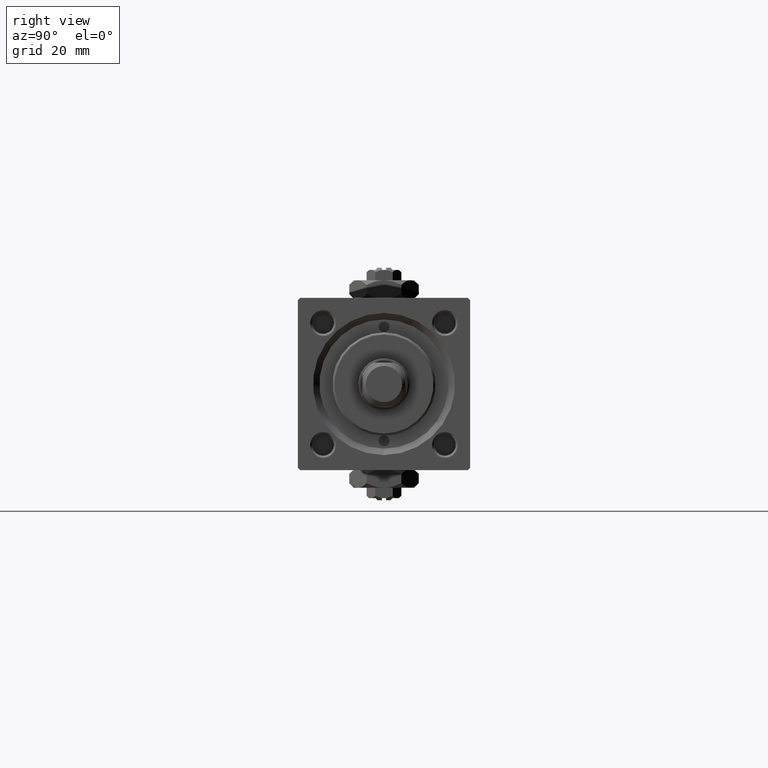
[diagram: clean part render]
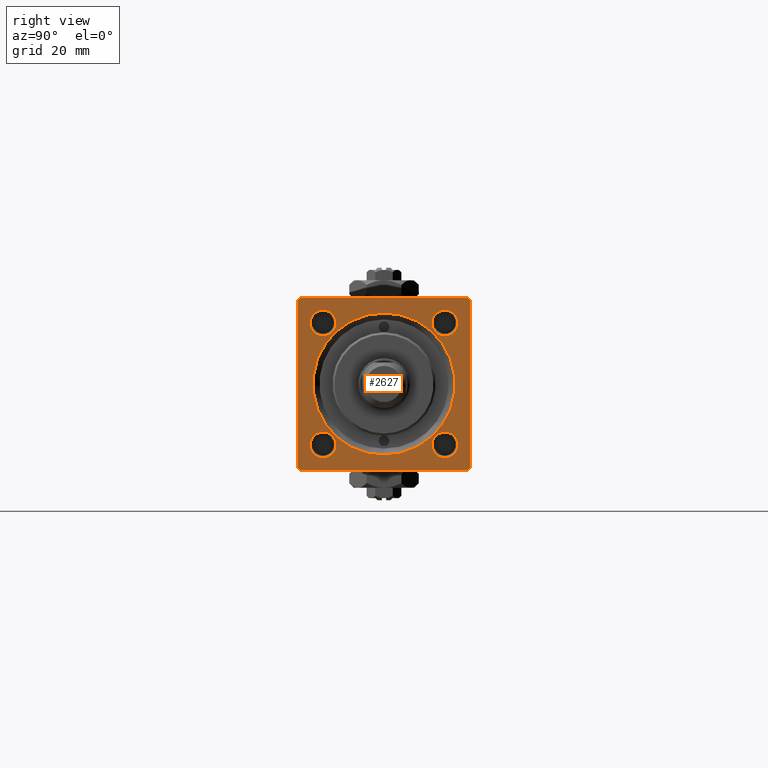
[diagram: same view with one face highlighted and labeled with its STEP entity id]
A machine part, right view. The second image highlights one B-rep face of the part: STEP entity #2627.
In plain terms, the highlighted planar face has unit normal (-1, 0, 0).
Its self-contained STEP definition (entity closure, byte-faithful):
#619 = FACE_BOUND ( 'NONE', #34025, .T. ) ;
#984 = DIRECTION ( 'NONE',  ( 0.000000000000000000, 0.000000000000000000, 1.000000000000000000 ) ) ;
#1127 = DIRECTION ( 'NONE',  ( 0.000000000000000000, 0.000000000000000000, 1.000000000000000000 ) ) ;
#1243 = DIRECTION ( 'NONE',  ( -1.000000000000000000, -0.000000000000000000, -0.000000000000000000 ) ) ;
#1309 = DIRECTION ( 'NONE',  ( 0.000000000000000000, 0.7071067811865376918, -0.7071067811865574537 ) ) ;
#1378 = DIRECTION ( 'NONE',  ( -1.000000000000000000, -0.000000000000000000, -0.000000000000000000 ) ) ;
#1434 = CARTESIAN_POINT ( 'NONE',  ( 119.0000000000000142, 14.14999999999999858, 17.15000000000003411 ) ) ;
#1684 = DIRECTION ( 'NONE',  ( 0.000000000000000000, -0.7071067811865574537, 0.7071067811865376918 ) ) ;
#2197 = VERTEX_POINT ( 'NONE', #21238 ) ;
#2200 = DIRECTION ( 'NONE',  ( -1.000000000000000000, -0.000000000000000000, -0.000000000000000000 ) ) ;
#2286 = CARTESIAN_POINT ( 'NONE',  ( 119.0000000000000142, 14.14999999999999858, -14.15000000000000036 ) ) ;
#2376 = EDGE_CURVE ( 'NONE', #47031, #46867, #18805, .T. ) ;
#2599 = ORIENTED_EDGE ( 'NONE', *, *, #45260, .T. ) ;
#2627 = ADVANCED_FACE ( 'NONE', ( #619, #29715, #41964, #45951, #5386, #16908 ), #45431, .F. ) ;
#3284 = CIRCLE ( 'NONE', #9278, 16.50000000000001421 ) ;
#3607 = DIRECTION ( 'NONE',  ( -1.000000000000000000, -0.000000000000000000, -0.000000000000000000 ) ) ;
#4382 = VECTOR ( 'NONE', #1684, 999.9999999999998863 ) ;
#5245 = CARTESIAN_POINT ( 'NONE',  ( 119.0000000000000142, -19.50000000000002487, -20.00000000000000000 ) ) ;
#5386 = FACE_BOUND ( 'NONE', #30901, .T. ) ;
#5707 = CARTESIAN_POINT ( 'NONE',  ( 119.0000000000000142, -20.00000000000000355, 19.50000000000002487 ) ) ;
#6130 = AXIS2_PLACEMENT_3D ( 'NONE', #14836, #3607, #31392 ) ;
#6453 = VERTEX_POINT ( 'NONE', #45550 ) ;
#6485 = EDGE_CURVE ( 'NONE', #44334, #36205, #44509, .T. ) ;
#7054 = ORIENTED_EDGE ( 'NONE', *, *, #12931, .T. ) ;
#7214 = VECTOR ( 'NONE', #42547, 1000.000000000000114 ) ;
#7534 = CARTESIAN_POINT ( 'NONE',  ( 119.0000000000000142, 19.99999999999999645, 20.00000000000000000 ) ) ;
#7550 = CARTESIAN_POINT ( 'NONE',  ( 119.0000000000000142, -14.14999999999999680, 14.15000000000000036 ) ) ;
#8658 = DIRECTION ( 'NONE',  ( 0.000000000000000000, 0.000000000000000000, 1.000000000000000000 ) ) ;
#8877 = ORIENTED_EDGE ( 'NONE', *, *, #35712, .T. ) ;
#9278 = AXIS2_PLACEMENT_3D ( 'NONE', #38778, #2200, #18486 ) ;
#9658 = CARTESIAN_POINT ( 'NONE',  ( 119.0000000000000142, -14.14999999999999680, 14.15000000000000036 ) ) ;
#10116 = CARTESIAN_POINT ( 'NONE',  ( 119.0000000000000142, 0.000000000000000000, -16.50000000000001421 ) ) ;
#10617 = ORIENTED_EDGE ( 'NONE', *, *, #41252, .T. ) ;
#11406 = VECTOR ( 'NONE', #1309, 999.9999999999998863 ) ;
#11810 = DIRECTION ( 'NONE',  ( 0.000000000000000000, -1.000000000000000000, -8.673617379884035472E-17 ) ) ;
#12024 = CARTESIAN_POINT ( 'NONE',  ( 119.0000000000000142, -20.00000000000000000, -19.50000000000001066 ) ) ;
#12342 = DIRECTION ( 'NONE',  ( 0.000000000000000000, 0.000000000000000000, 1.000000000000000000 ) ) ;
#12411 = CARTESIAN_POINT ( 'NONE',  ( 119.0000000000000142, 14.14999999999999858, 11.14999999999996838 ) ) ;
#12759 = CIRCLE ( 'NONE', #47694, 3.000000000000031974 ) ;
#12931 = EDGE_CURVE ( 'NONE', #42111, #35576, #3284, .T. ) ;
#13513 = AXIS2_PLACEMENT_3D ( 'NONE', #48869, #16353, #12342 ) ;
#13762 = DIRECTION ( 'NONE',  ( 0.000000000000000000, 0.000000000000000000, -1.000000000000000000 ) ) ;
#13938 = EDGE_CURVE ( 'NONE', #43740, #47031, #16350, .T. ) ;
#13987 = CIRCLE ( 'NONE', #44642, 3.000000000000031974 ) ;
#14248 = VERTEX_POINT ( 'NONE', #44552 ) ;
#14572 = DIRECTION ( 'NONE',  ( -1.000000000000000000, -0.000000000000000000, -0.000000000000000000 ) ) ;
#14628 = EDGE_LOOP ( 'NONE', ( #40461, #8877 ) ) ;
#14836 = CARTESIAN_POINT ( 'NONE',  ( 119.0000000000000142, 14.14999999999999858, -14.15000000000000036 ) ) ;
#15572 = EDGE_LOOP ( 'NONE', ( #40940, #46258 ) ) ;
#15922 = ORIENTED_EDGE ( 'NONE', *, *, #51702, .T. ) ;
#16047 = EDGE_CURVE ( 'NONE', #52340, #44778, #48446, .T. ) ;
#16350 = LINE ( 'NONE', #7534, #27239 ) ;
#16353 = DIRECTION ( 'NONE',  ( -1.000000000000000000, -0.000000000000000000, -0.000000000000000000 ) ) ;
#16908 = FACE_OUTER_BOUND ( 'NONE', #18605, .T. ) ;
#17975 = LINE ( 'NONE', #38251, #4382 ) ;
#18145 = AXIS2_PLACEMENT_3D ( 'NONE', #9658, #1378, #1127 ) ;
#18486 = DIRECTION ( 'NONE',  ( 0.000000000000000000, 0.000000000000000000, 1.000000000000000000 ) ) ;
#18605 = EDGE_LOOP ( 'NONE', ( #2599, #42739, #31938, #15922, #27566, #19858, #18987, #40995 ) ) ;
#18649 = LINE ( 'NONE', #38674, #11406 ) ;
#18805 = LINE ( 'NONE', #5707, #7214 ) ;
#18987 = ORIENTED_EDGE ( 'NONE', *, *, #13938, .T. ) ;
#19256 = EDGE_CURVE ( 'NONE', #6453, #43740, #17975, .T. ) ;
#19342 = CIRCLE ( 'NONE', #43209, 3.000000000000031974 ) ;
#19858 = ORIENTED_EDGE ( 'NONE', *, *, #19256, .T. ) ;
#20235 = CARTESIAN_POINT ( 'NONE',  ( 119.0000000000000142, 19.99999999999999645, -20.00000000000000000 ) ) ;
#20254 = DIRECTION ( 'NONE',  ( 0.000000000000000000, 0.000000000000000000, 1.000000000000000000 ) ) ;
#21183 = CARTESIAN_POINT ( 'NONE',  ( 119.0000000000000142, -20.00000000000000355, 19.50000000000002487 ) ) ;
#21238 = CARTESIAN_POINT ( 'NONE',  ( 119.0000000000000142, -14.14999999999999680, 11.14999999999996838 ) ) ;
#21678 = CARTESIAN_POINT ( 'NONE',  ( 119.0000000000000142, 0.000000000000000000, 0.000000000000000000 ) ) ;
#22162 = VERTEX_POINT ( 'NONE', #34433 ) ;
#22414 = EDGE_LOOP ( 'NONE', ( #10617, #27753 ) ) ;
#23494 = CARTESIAN_POINT ( 'NONE',  ( 119.0000000000000142, 19.49999999999996803, 20.00000000000000000 ) ) ;
#24299 = CARTESIAN_POINT ( 'NONE',  ( 119.0000000000000142, -14.14999999999999503, -11.14999999999997371 ) ) ;
#24529 = CARTESIAN_POINT ( 'NONE',  ( 119.0000000000000142, -14.14999999999999503, -14.15000000000000391 ) ) ;
#24822 = DIRECTION ( 'NONE',  ( -1.000000000000000000, -0.000000000000000000, -0.000000000000000000 ) ) ;
#24940 = DIRECTION ( 'NONE',  ( -1.000000000000000000, -0.000000000000000000, -0.000000000000000000 ) ) ;
#25494 = VECTOR ( 'NONE', #26131, 1000.000000000000114 ) ;
#25700 = EDGE_CURVE ( 'NONE', #34584, #27559, #19342, .T. ) ;
#26131 = DIRECTION ( 'NONE',  ( -0.000000000000000000, 0.7071067811865474617, 0.7071067811865474617 ) ) ;
#26340 = DIRECTION ( 'NONE',  ( 0.000000000000000000, 0.000000000000000000, 1.000000000000000000 ) ) ;
#27233 = EDGE_CURVE ( 'NONE', #14248, #47413, #30476, .T. ) ;
#27239 = VECTOR ( 'NONE', #11810, 1000.000000000000000 ) ;
#27559 = VERTEX_POINT ( 'NONE', #1434 ) ;
#27566 = ORIENTED_EDGE ( 'NONE', *, *, #50316, .F. ) ;
#27753 = ORIENTED_EDGE ( 'NONE', *, *, #27233, .T. ) ;
#27991 = VERTEX_POINT ( 'NONE', #12024 ) ;
#28041 = AXIS2_PLACEMENT_3D ( 'NONE', #37570, #1243, #26340 ) ;
#28130 = DIRECTION ( 'NONE',  ( -1.000000000000000000, -0.000000000000000000, -0.000000000000000000 ) ) ;
#28457 = VECTOR ( 'NONE', #48354, 1000.000000000000000 ) ;
#28830 = LINE ( 'NONE', #42043, #51820 ) ;
#28843 = CARTESIAN_POINT ( 'NONE',  ( 119.0000000000000142, 14.14999999999999858, 14.15000000000000036 ) ) ;
#29191 = CIRCLE ( 'NONE', #6130, 3.000000000000031974 ) ;
#29203 = DIRECTION ( 'NONE',  ( -0.000000000000000000, 0.000000000000000000, 1.000000000000000000 ) ) ;
#29715 = FACE_BOUND ( 'NONE', #14628, .T. ) ;
#29765 = CARTESIAN_POINT ( 'NONE',  ( 119.0000000000000142, 2.020667218593134678E-15, 16.50000000000001421 ) ) ;
#30476 = CIRCLE ( 'NONE', #44087, 3.000000000000031974 ) ;
#30655 = CARTESIAN_POINT ( 'NONE',  ( 119.0000000000000142, -14.14999999999999680, 17.15000000000003411 ) ) ;
#30901 = EDGE_LOOP ( 'NONE', ( #7054, #35556 ) ) ;
#30931 = CIRCLE ( 'NONE', #31796, 3.000000000000031974 ) ;
#31392 = DIRECTION ( 'NONE',  ( 0.000000000000000000, 0.000000000000000000, 1.000000000000000000 ) ) ;
#31704 = VERTEX_POINT ( 'NONE', #30655 ) ;
#31796 = AXIS2_PLACEMENT_3D ( 'NONE', #28843, #24822, #984 ) ;
#31938 = ORIENTED_EDGE ( 'NONE', *, *, #6485, .F. ) ;
#32915 = VECTOR ( 'NONE', #40257, 1000.000000000000000 ) ;
#33702 = ORIENTED_EDGE ( 'NONE', *, *, #25700, .T. ) ;
#34025 = EDGE_LOOP ( 'NONE', ( #33702, #34381 ) ) ;
#34381 = ORIENTED_EDGE ( 'NONE', *, *, #42802, .T. ) ;
#34433 = CARTESIAN_POINT ( 'NONE',  ( 119.0000000000000142, 19.99999999999999645, -19.50000000000000000 ) ) ;
#34584 = VERTEX_POINT ( 'NONE', #12411 ) ;
#35142 = LINE ( 'NONE', #51381, #28457 ) ;
#35291 = CARTESIAN_POINT ( 'NONE',  ( 119.0000000000000142, -19.50000000000001776, 19.99999999999999645 ) ) ;
#35556 = ORIENTED_EDGE ( 'NONE', *, *, #51106, .T. ) ;
#35576 = VERTEX_POINT ( 'NONE', #29765 ) ;
#35712 = EDGE_CURVE ( 'NONE', #31704, #2197, #12759, .T. ) ;
#36157 = CARTESIAN_POINT ( 'NONE',  ( 119.0000000000000142, 14.14999999999999858, 14.15000000000000036 ) ) ;
#36205 = VERTEX_POINT ( 'NONE', #5245 ) ;
#37570 = CARTESIAN_POINT ( 'NONE',  ( 119.0000000000000142, -14.14999999999999503, -14.15000000000000391 ) ) ;
#38251 = CARTESIAN_POINT ( 'NONE',  ( 119.0000000000000142, 19.49999999999996803, 20.00000000000000000 ) ) ;
#38674 = CARTESIAN_POINT ( 'NONE',  ( 119.0000000000000142, -19.50000000000002487, -20.00000000000000000 ) ) ;
#38778 = CARTESIAN_POINT ( 'NONE',  ( 119.0000000000000142, 0.000000000000000000, 0.000000000000000000 ) ) ;
#39455 = CIRCLE ( 'NONE', #18145, 3.000000000000031974 ) ;
#39590 = DIRECTION ( 'NONE',  ( 0.000000000000000000, 0.000000000000000000, 1.000000000000000000 ) ) ;
#40257 = DIRECTION ( 'NONE',  ( 0.000000000000000000, -1.000000000000000000, 0.000000000000000000 ) ) ;
#40461 = ORIENTED_EDGE ( 'NONE', *, *, #42622, .T. ) ;
#40799 = DIRECTION ( 'NONE',  ( -1.000000000000000000, -0.000000000000000000, -0.000000000000000000 ) ) ;
#40940 = ORIENTED_EDGE ( 'NONE', *, *, #46633, .T. ) ;
#40995 = ORIENTED_EDGE ( 'NONE', *, *, #2376, .T. ) ;
#41075 = CARTESIAN_POINT ( 'NONE',  ( 119.0000000000000142, 14.14999999999999858, -17.15000000000003411 ) ) ;
#41252 = EDGE_CURVE ( 'NONE', #47413, #14248, #29191, .T. ) ;
#41964 = FACE_BOUND ( 'NONE', #15572, .T. ) ;
#42043 = CARTESIAN_POINT ( 'NONE',  ( 119.0000000000000142, 19.99999999999999645, 20.00000000000000000 ) ) ;
#42111 = VERTEX_POINT ( 'NONE', #10116 ) ;
#42547 = DIRECTION ( 'NONE',  ( -0.000000000000000000, -0.7071067811865573427, -0.7071067811865376918 ) ) ;
#42622 = EDGE_CURVE ( 'NONE', #2197, #31704, #39455, .T. ) ;
#42739 = ORIENTED_EDGE ( 'NONE', *, *, #44842, .T. ) ;
#42802 = EDGE_CURVE ( 'NONE', #27559, #34584, #30931, .T. ) ;
#42915 = LINE ( 'NONE', #43174, #25494 ) ;
#43174 = CARTESIAN_POINT ( 'NONE',  ( 119.0000000000000142, 19.99999999999999645, -19.50000000000000000 ) ) ;
#43209 = AXIS2_PLACEMENT_3D ( 'NONE', #36157, #24940, #8658 ) ;
#43740 = VERTEX_POINT ( 'NONE', #23494 ) ;
#44087 = AXIS2_PLACEMENT_3D ( 'NONE', #2286, #14572, #45080 ) ;
#44334 = VERTEX_POINT ( 'NONE', #47835 ) ;
#44509 = LINE ( 'NONE', #20235, #32915 ) ;
#44552 = CARTESIAN_POINT ( 'NONE',  ( 119.0000000000000142, 14.14999999999999858, -11.14999999999997016 ) ) ;
#44642 = AXIS2_PLACEMENT_3D ( 'NONE', #24529, #40799, #20254 ) ;
#44778 = VERTEX_POINT ( 'NONE', #48025 ) ;
#44842 = EDGE_CURVE ( 'NONE', #27991, #36205, #18649, .T. ) ;
#45080 = DIRECTION ( 'NONE',  ( 0.000000000000000000, 0.000000000000000000, 1.000000000000000000 ) ) ;
#45260 = EDGE_CURVE ( 'NONE', #46867, #27991, #35142, .T. ) ;
#45431 = PLANE ( 'NONE',  #48945 ) ;
#45550 = CARTESIAN_POINT ( 'NONE',  ( 119.0000000000000142, 19.99999999999999645, 19.49999999999998579 ) ) ;
#45911 = CIRCLE ( 'NONE', #13513, 16.50000000000001421 ) ;
#45951 = FACE_BOUND ( 'NONE', #22414, .T. ) ;
#46258 = ORIENTED_EDGE ( 'NONE', *, *, #16047, .T. ) ;
#46633 = EDGE_CURVE ( 'NONE', #44778, #52340, #13987, .T. ) ;
#46867 = VERTEX_POINT ( 'NONE', #21183 ) ;
#47031 = VERTEX_POINT ( 'NONE', #35291 ) ;
#47413 = VERTEX_POINT ( 'NONE', #41075 ) ;
#47694 = AXIS2_PLACEMENT_3D ( 'NONE', #7550, #28130, #39590 ) ;
#47835 = CARTESIAN_POINT ( 'NONE',  ( 119.0000000000000142, 19.49999999999999645, -20.00000000000000000 ) ) ;
#48025 = CARTESIAN_POINT ( 'NONE',  ( 119.0000000000000142, -14.14999999999999503, -17.15000000000003766 ) ) ;
#48354 = DIRECTION ( 'NONE',  ( 0.000000000000000000, 8.673617379884036705E-17, -1.000000000000000000 ) ) ;
#48446 = CIRCLE ( 'NONE', #28041, 3.000000000000031974 ) ;
#48869 = CARTESIAN_POINT ( 'NONE',  ( 119.0000000000000142, 0.000000000000000000, 0.000000000000000000 ) ) ;
#48945 = AXIS2_PLACEMENT_3D ( 'NONE', #21678, #49434, #29203 ) ;
#49434 = DIRECTION ( 'NONE',  ( -1.000000000000000000, 0.000000000000000000, -0.000000000000000000 ) ) ;
#50316 = EDGE_CURVE ( 'NONE', #6453, #22162, #28830, .T. ) ;
#51106 = EDGE_CURVE ( 'NONE', #35576, #42111, #45911, .T. ) ;
#51381 = CARTESIAN_POINT ( 'NONE',  ( 119.0000000000000142, -20.00000000000000355, 19.99999999999999645 ) ) ;
#51702 = EDGE_CURVE ( 'NONE', #44334, #22162, #42915, .T. ) ;
#51820 = VECTOR ( 'NONE', #13762, 1000.000000000000000 ) ;
#52340 = VERTEX_POINT ( 'NONE', #24299 ) ;